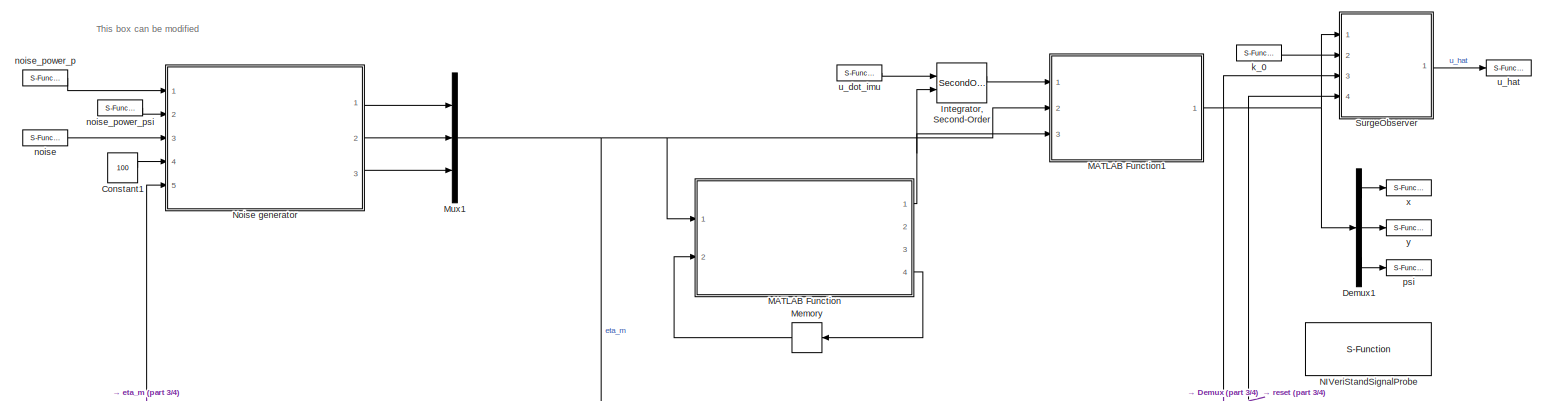
[diagram: root canvas - part 1/4, full width, top band]
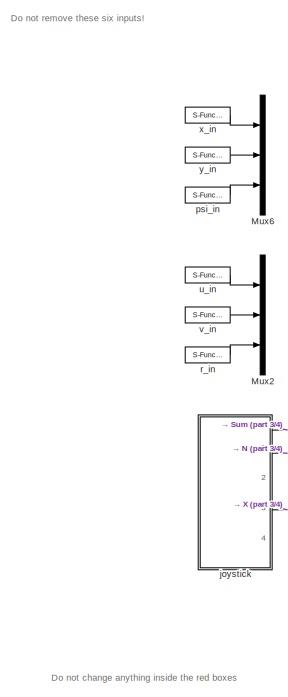
[diagram: root canvas - part 2/4, middle left region]
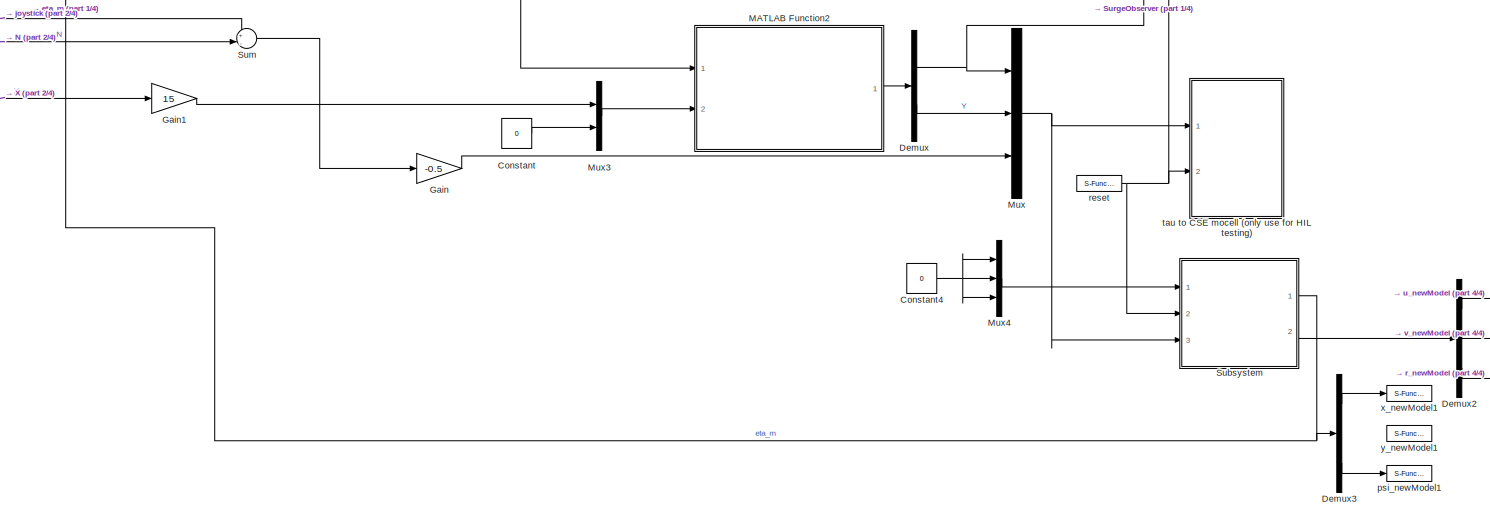
[diagram: root canvas - part 3/4, full width, bottom band]
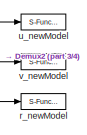
[diagram: root canvas - part 4/4, bottom right region]
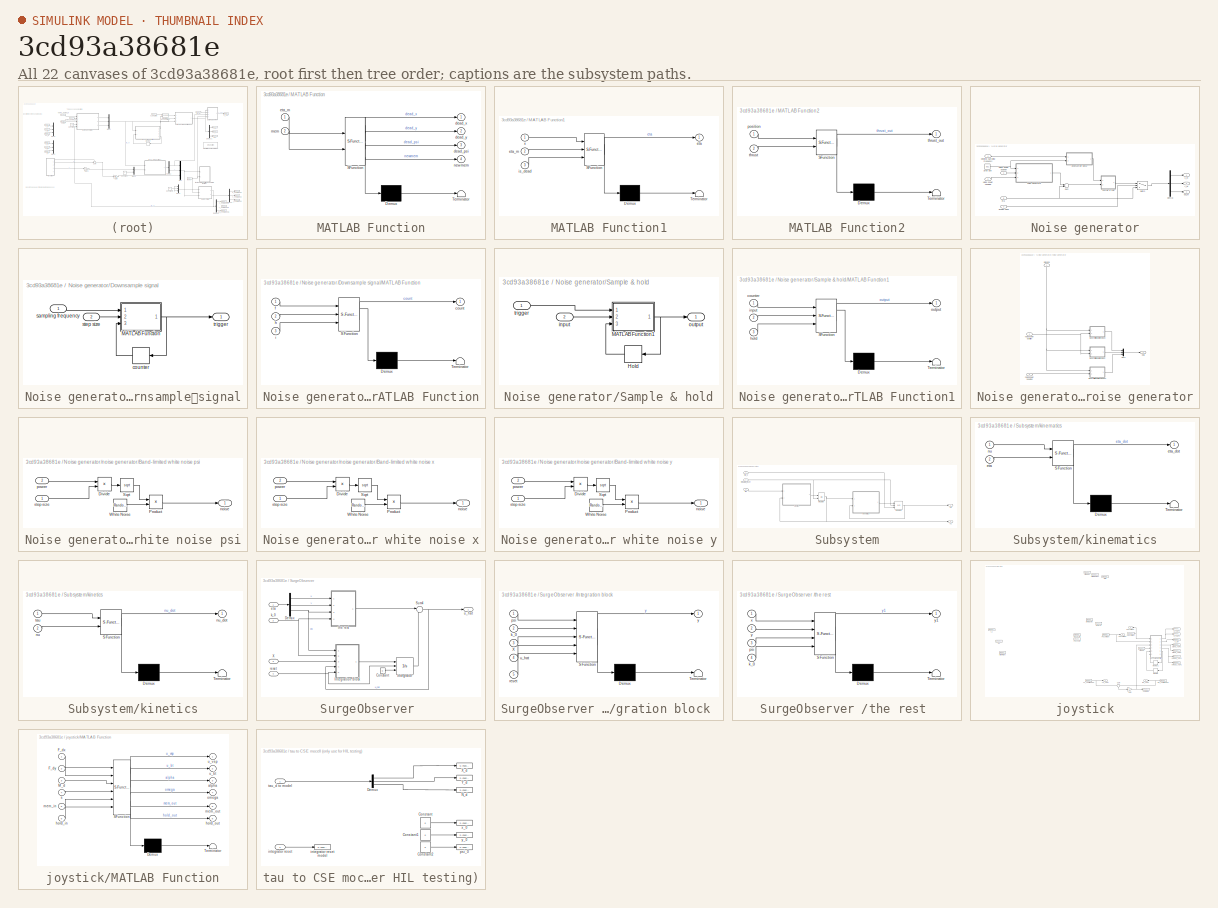
[diagram: thumbnail index - all 22 canvases of the model, root first then tree order]
MODEL slx_3cd93a38681e
KIND model
CONFIG AbsTol = auto
CONFIG FixedStep = 0.001
CONFIG MaxStep = auto
CONFIG MinStep = auto
CONFIG RelTol = 1e-3
CONFIG SampleTimeConstraint = Unconstrained
CONFIG Solver = ode2
CONFIG SolverMode = Auto
CONFIG SolverName = ode2
CONFIG StartTime = 0.0
CONFIG StopTime = inf
BLOCK [Constant] Constant
  Value = 0
BLOCK [Constant] Constant1
  Value = 100
BLOCK [Constant] Constant4
  Value = 0
BLOCK [Demux] Demux
  DisplayOption = bar
  Outputs = 2
  Ports = [1, 2]
BLOCK [Demux] Demux1
  DisplayOption = bar
  Outputs = 3
  Ports = [1, 3]
BLOCK [Demux] Demux2
  DisplayOption = bar
  Outputs = 3
  Ports = [1, 3]
BLOCK [Demux] Demux3
  DisplayOption = bar
  Outputs = 3
  Ports = [1, 3]
BLOCK [Gain] Gain
  Gain = -0.5
  OutDataTypeStr = Inherit: Inherit via internal rule
  ParamDataTypeStr = Inherit: Inherit via internal rule
  SaturateOnIntegerOverflow = off
BLOCK [Gain] Gain1
  Gain = 15
  OutDataTypeStr = Inherit: Inherit via internal rule
  ParamDataTypeStr = Inherit: Inherit via internal rule
  SaturateOnIntegerOverflow = off
BLOCK [SecondOrderIntegrator] Integrator, Second-Order
  ExternalReset = rising
  Ports = [2, 2]
BLOCK [SubSystem] MATLAB Function
  ErrorFcn = Stateflow.Translate.translate
  PermitHierarchicalResolution = ExplicitOnly
  Ports = [2, 4]
  RequestExecContextInheritance = off
  SFBlockType = MATLAB Function
  TreatAsAtomicUnit = on
BLOCK [Demux] MATLAB Function/ Demux 
  Outputs = 1
  Ports = [1, 1]
BLOCK [S-Function] MATLAB Function/ SFunction 
  EnableBusSupport = on
  FunctionName = sf_sfun
  PortCounts = [2 5]
  Ports = [2, 5]
  Tag = Stateflow S-Function ctrl_student_HIL 6
BLOCK [Terminator] MATLAB Function/ Terminator 
BLOCK [Outport] MATLAB Function/dead_psi
  IconDisplay = Port number
  Port = 3
BLOCK [Outport] MATLAB Function/dead_x
  IconDisplay = Port number
BLOCK [Outport] MATLAB Function/dead_y
  IconDisplay = Port number
  Port = 2
BLOCK [Inport] MATLAB Function/eta_m
  IconDisplay = Port number
BLOCK [Inport] MATLAB Function/mem
  IconDisplay = Port number
  Port = 2
BLOCK [Outport] MATLAB Function/newmem
  IconDisplay = Port number
  Port = 4
BLOCK [SubSystem] MATLAB Function1
  ErrorFcn = Stateflow.Translate.translate
  PermitHierarchicalResolution = ExplicitOnly
  Ports = [3, 1]
  RequestExecContextInheritance = off
  SFBlockType = MATLAB Function
  TreatAsAtomicUnit = on
BLOCK [Demux] MATLAB Function1/ Demux 
  Outputs = 1
  Ports = [1, 1]
BLOCK [S-Function] MATLAB Function1/ SFunction 
  EnableBusSupport = on
  FunctionName = sf_sfun
  PortCounts = [3 2]
  Ports = [3, 2]
  Tag = Stateflow S-Function ctrl_student_HIL 7
BLOCK [Terminator] MATLAB Function1/ Terminator 
BLOCK [Outport] MATLAB Function1/eta
  IconDisplay = Port number
BLOCK [Inport] MATLAB Function1/eta_m
  IconDisplay = Port number
  Port = 2
BLOCK [Inport] MATLAB Function1/is_dead
  IconDisplay = Port number
  Port = 3
BLOCK [Inport] MATLAB Function1/x
  IconDisplay = Port number
BLOCK [SubSystem] MATLAB Function2
  ErrorFcn = Stateflow.Translate.translate
  PermitHierarchicalResolution = ExplicitOnly
  Ports = [2, 1]
  RequestExecContextInheritance = off
  SFBlockType = MATLAB Function
  TreatAsAtomicUnit = on
BLOCK [Demux] MATLAB Function2/ Demux 
  Outputs = 1
  Ports = [1, 1]
BLOCK [S-Function] MATLAB Function2/ SFunction 
  EnableBusSupport = on
  FunctionName = sf_sfun
  PortCounts = [2 2]
  Ports = [2, 2]
  Tag = Stateflow S-Function ctrl_student_HIL 8
BLOCK [Terminator] MATLAB Function2/ Terminator 
BLOCK [Inport] MATLAB Function2/position
  IconDisplay = Port number
BLOCK [Inport] MATLAB Function2/thrust
  IconDisplay = Port number
  Port = 2
BLOCK [Outport] MATLAB Function2/thrust_out
  IconDisplay = Port number
BLOCK [Memory] Memory
  InheritSampleTime = on
  LinearizeAsDelay = on
  X0 = [1 0 1; 1 0 1; 1 0 1]
BLOCK [Mux] Mux
  DisplayOption = bar
  Inputs = 3
  Ports = [3, 1]
BLOCK [Mux] Mux1
  DisplayOption = bar
  Inputs = 3
  Ports = [3, 1]
BLOCK [Mux] Mux2
  DisplayOption = bar
  Inputs = 3
  Ports = [3, 1]
BLOCK [Mux] Mux3
  DisplayOption = bar
  Inputs = 2
  Ports = [2, 1]
BLOCK [Mux] Mux4
  DisplayOption = bar
  Inputs = 3
  Ports = [3, 1]
BLOCK [Mux] Mux6
  DisplayOption = bar
  Inputs = 3
  Ports = [3, 1]
BLOCK [S-Function] NIVeriStandSignalProbe
  FunctionName = NIVeriStandSignalProbe
  Parameters = 1
  Ports = []
BLOCK [SubSystem] Noise generator
  Ports = [5, 3]
  RequestExecContextInheritance = off
BLOCK [Demux] Noise generator/Demux
  DisplayOption = bar
  Outputs = 3
  Ports = [1, 3]
BLOCK [Inport] Noise generator/Desiired Sampling Frequency
  IconDisplay = Port number
  Port = 4
BLOCK [SubSystem] Noise generator/Downsample	signal
  Ports = [2, 1]
  RequestExecContextInheritance = off
BLOCK [SubSystem] Noise generator/Downsample	signal/MATLAB Function
  ErrorFcn = Stateflow.Translate.translate
  PermitHierarchicalResolution = ExplicitOnly
  Ports = [3, 1]
  RequestExecContextInheritance = off
  SFBlockType = MATLAB Function
  TreatAsAtomicUnit = on
BLOCK [Demux] Noise generator/Downsample	signal/MATLAB Function/ Demux 
  Outputs = 1
  Ports = [1, 1]
BLOCK [S-Function] Noise generator/Downsample	signal/MATLAB Function/ SFunction 
  EnableBusSupport = on
  FunctionName = sf_sfun
  PortCounts = [3 2]
  Ports = [3, 2]
  Tag = Stateflow S-Function ctrl_student_HIL 3
BLOCK [Terminator] Noise generator/Downsample	signal/MATLAB Function/ Terminator 
BLOCK [Outport] Noise generator/Downsample	signal/MATLAB Function/count
  IconDisplay = Port number
BLOCK [Inport] Noise generator/Downsample	signal/MATLAB Function/f
  IconDisplay = Port number
BLOCK [Inport] Noise generator/Downsample	signal/MATLAB Function/h
  IconDisplay = Port number
  Port = 2
BLOCK [Inport] Noise generator/Downsample	signal/MATLAB Function/i
  IconDisplay = Port number
  Port = 3
BLOCK [Memory] Noise generator/Downsample	signal/counter
BLOCK [Inport] Noise generator/Downsample	signal/sampling frequency
  IconDisplay = Port number
BLOCK [Inport] Noise generator/Downsample	signal/step size
  IconDisplay = Port number
  Port = 2
BLOCK [Outport] Noise generator/Downsample	signal/trigger
  IconDisplay = Port number
BLOCK [Inport] Noise generator/Enable noise
  IconDisplay = Port number
  Port = 3
BLOCK [Inport] Noise generator/Noise power heading
  IconDisplay = Port number
  Port = 2
BLOCK [Inport] Noise generator/Noise power position
  IconDisplay = Port number
BLOCK [SubSystem] Noise generator/Sample & hold
  Ports = [2, 1]
  RequestExecContextInheritance = off
BLOCK [Memory] Noise generator/Sample & hold/Hold
BLOCK [SubSystem] Noise generator/Sample & hold/MATLAB Function1
  ErrorFcn = Stateflow.Translate.translate
  PermitHierarchicalResolution = ExplicitOnly
  Ports = [3, 1]
  RequestExecContextInheritance = off
  SFBlockType = MATLAB Function
  TreatAsAtomicUnit = on
BLOCK [Demux] Noise generator/Sample & hold/MATLAB Function1/ Demux 
  Outputs = 1
  Ports = [1, 1]
BLOCK [S-Function] Noise generator/Sample & hold/MATLAB Function1/ SFunction 
  EnableBusSupport = on
  FunctionName = sf_sfun
  PortCounts = [3 2]
  Ports = [3, 2]
  Tag = Stateflow S-Function ctrl_student_HIL 5
BLOCK [Terminator] Noise generator/Sample & hold/MATLAB Function1/ Terminator 
BLOCK [Inport] Noise generator/Sample & hold/MATLAB Function1/counter
  IconDisplay = Port number
BLOCK [Inport] Noise generator/Sample & hold/MATLAB Function1/hold
  IconDisplay = Port number
  Port = 3
BLOCK [Inport] Noise generator/Sample & hold/MATLAB Function1/input
  IconDisplay = Port number
  Port = 2
BLOCK [Outport] Noise generator/Sample & hold/MATLAB Function1/output
  IconDisplay = Port number
BLOCK [Inport] Noise generator/Sample & hold/input
  IconDisplay = Port number
  Port = 2
BLOCK [Outport] Noise generator/Sample & hold/output
  IconDisplay = Port number
BLOCK [Inport] Noise generator/Sample & hold/trigger
  IconDisplay = Port number
BLOCK [Constant] Noise generator/Step size
  Value = 0.01
BLOCK [Sum] Noise generator/Sum
  InputSameDT = off
  OutDataTypeStr = Inherit: Inherit via internal rule
  Ports = [2, 1]
  SaturateOnIntegerOverflow = off
BLOCK [Switch] Noise generator/Switch
  Criteria = u2 ~= 0
  InputSameDT = off
  SaturateOnIntegerOverflow = off
BLOCK [Inport] Noise generator/eta
  IconDisplay = Port number
  Port = 5
BLOCK [SubSystem] Noise generator/noise generator
  Ports = [3, 1]
  RequestExecContextInheritance = off
BLOCK [SubSystem] Noise generator/noise generator/Band-limited white noise psi
  Ports = [2, 1]
  RequestExecContextInheritance = off
BLOCK [Product] Noise generator/noise generator/Band-limited white noise psi/Divide
  InputSameDT = off
  Inputs = */
  OutDataTypeStr = Inherit: Inherit via internal rule
  Ports = [2, 1]
  RndMeth = Floor
  SaturateOnIntegerOverflow = off
BLOCK [Product] Noise generator/noise generator/Band-limited white noise psi/Product
  InputSameDT = off
  OutDataTypeStr = Inherit: Inherit via internal rule
  Ports = [2, 1]
  RndMeth = Floor
  SaturateOnIntegerOverflow = off
BLOCK [Sqrt] Noise generator/noise generator/Band-limited white noise psi/Sqrt
BLOCK [RandomNumber] Noise generator/noise generator/Band-limited white noise psi/White Noise
  DisableCoverage = on
  Seed = 9025
BLOCK [Outport] Noise generator/noise generator/Band-limited white noise psi/noise
  IconDisplay = Port number
BLOCK [Inport] Noise generator/noise generator/Band-limited white noise psi/power
  IconDisplay = Port number
  Port = 2
BLOCK [Inport] Noise generator/noise generator/Band-limited white noise psi/step size
  IconDisplay = Port number
BLOCK [SubSystem] Noise generator/noise generator/Band-limited white noise x
  Ports = [2, 1]
  RequestExecContextInheritance = off
BLOCK [Product] Noise generator/noise generator/Band-limited white noise x/Divide
  InputSameDT = off
  Inputs = */
  OutDataTypeStr = Inherit: Inherit via internal rule
  Ports = [2, 1]
  RndMeth = Floor
  SaturateOnIntegerOverflow = off
BLOCK [Product] Noise generator/noise generator/Band-limited white noise x/Product
  InputSameDT = off
  OutDataTypeStr = Inherit: Inherit via internal rule
  Ports = [2, 1]
  RndMeth = Floor
  SaturateOnIntegerOverflow = off
BLOCK [Sqrt] Noise generator/noise generator/Band-limited white noise x/Sqrt
BLOCK [RandomNumber] Noise generator/noise generator/Band-limited white noise x/White Noise
  DisableCoverage = on
  Seed = 9024
BLOCK [Outport] Noise generator/noise generator/Band-limited white noise x/noise
  IconDisplay = Port number
BLOCK [Inport] Noise generator/noise generator/Band-limited white noise x/power
  IconDisplay = Port number
  Port = 2
BLOCK [Inport] Noise generator/noise generator/Band-limited white noise x/step size
  IconDisplay = Port number
BLOCK [SubSystem] Noise generator/noise generator/Band-limited white noise y
  Ports = [2, 1]
  RequestExecContextInheritance = off
BLOCK [Product] Noise generator/noise generator/Band-limited white noise y/Divide
  InputSameDT = off
  Inputs = */
  OutDataTypeStr = Inherit: Inherit via internal rule
  Ports = [2, 1]
  RndMeth = Floor
  SaturateOnIntegerOverflow = off
BLOCK [Product] Noise generator/noise generator/Band-limited white noise y/Product
  InputSameDT = off
  OutDataTypeStr = Inherit: Inherit via internal rule
  Ports = [2, 1]
  RndMeth = Floor
  SaturateOnIntegerOverflow = off
BLOCK [Sqrt] Noise generator/noise generator/Band-limited white noise y/Sqrt
BLOCK [RandomNumber] Noise generator/noise generator/Band-limited white noise y/White Noise
  DisableCoverage = on
  Seed = 123
BLOCK [Outport] Noise generator/noise generator/Band-limited white noise y/noise
  IconDisplay = Port number
BLOCK [Inport] Noise generator/noise generator/Band-limited white noise y/power
  IconDisplay = Port number
  Port = 2
BLOCK [Inport] Noise generator/noise generator/Band-limited white noise y/step size
  IconDisplay = Port number
BLOCK [Mux] Noise generator/noise generator/Mux1
  DisplayOption = bar
  Inputs = 3
  Ports = [3, 1]
BLOCK [Outport] Noise generator/noise generator/Out1
  IconDisplay = Port number
BLOCK [Inport] Noise generator/noise generator/noise power heading
  IconDisplay = Port number
  Port = 3
BLOCK [Inport] Noise generator/noise generator/noise power position
  IconDisplay = Port number
  Port = 2
BLOCK [Inport] Noise generator/noise generator/step size
  IconDisplay = Port number
BLOCK [Outport] Noise generator/psi_m
  IconDisplay = Port number
  Port = 3
BLOCK [Outport] Noise generator/x_m
  IconDisplay = Port number
BLOCK [Outport] Noise generator/y_m
  IconDisplay = Port number
  Port = 2
BLOCK [SubSystem] Subsystem
  Ports = [3, 2]
  RequestExecContextInheritance = off
BLOCK [Integrator] Subsystem/Integrator
  ExternalReset = rising
  InitialCondition = [0 0 0]'
  Ports = [2, 1]
BLOCK [Integrator] Subsystem/Integrator1
  ExternalReset = rising
  InitialCondition = [0 0 0]'
  InitialConditionSource = external
  Ports = [3, 1]
BLOCK [Outport] Subsystem/eta
  IconDisplay = Port number
BLOCK [Inport] Subsystem/eta_0
  IconDisplay = Port number
BLOCK [Inport] Subsystem/integrator_reset
  IconDisplay = Port number
  Port = 2
BLOCK [SubSystem] Subsystem/kinematics
  ErrorFcn = Stateflow.Translate.translate
  PermitHierarchicalResolution = ExplicitOnly
  Ports = [2, 1]
  RequestExecContextInheritance = off
  SFBlockType = MATLAB Function
  TreatAsAtomicUnit = on
BLOCK [Demux] Subsystem/kinematics/ Demux 
  Outputs = 1
  Ports = [1, 1]
BLOCK [S-Function] Subsystem/kinematics/ SFunction 
  EnableBusSupport = on
  FunctionName = sf_sfun
  PortCounts = [2 2]
  Ports = [2, 2]
  Tag = Stateflow S-Function ctrl_student_HIL 1
BLOCK [Terminator] Subsystem/kinematics/ Terminator 
BLOCK [Inport] Subsystem/kinematics/eta
  IconDisplay = Port number
  Port = 2
BLOCK [Outport] Subsystem/kinematics/eta_dot
  IconDisplay = Port number
BLOCK [Inport] Subsystem/kinematics/nu
  IconDisplay = Port number
BLOCK [SubSystem] Subsystem/kinetics
  ErrorFcn = Stateflow.Translate.translate
  PermitHierarchicalResolution = ExplicitOnly
  Ports = [2, 1]
  RequestExecContextInheritance = off
  SFBlockType = MATLAB Function
  TreatAsAtomicUnit = on
BLOCK [Demux] Subsystem/kinetics/ Demux 
  Outputs = 1
  Ports = [1, 1]
BLOCK [S-Function] Subsystem/kinetics/ SFunction 
  EnableBusSupport = on
  FunctionName = sf_sfun
  PortCounts = [2 2]
  Ports = [2, 2]
  Tag = Stateflow S-Function ctrl_student_HIL 4
BLOCK [Terminator] Subsystem/kinetics/ Terminator 
BLOCK [Inport] Subsystem/kinetics/nu
  IconDisplay = Port number
  Port = 2
BLOCK [Outport] Subsystem/kinetics/nu_dot
  IconDisplay = Port number
BLOCK [Inport] Subsystem/kinetics/tau
  IconDisplay = Port number
BLOCK [Outport] Subsystem/nu
  IconDisplay = Port number
  Port = 2
BLOCK [Inport] Subsystem/tau
  IconDisplay = Port number
  Port = 3
BLOCK [Sum] Sum
  IconShape = round
  InputSameDT = off
  Inputs = +|-
  OutDataTypeStr = Inherit: Inherit via internal rule
  Ports = [2, 1]
  SaturateOnIntegerOverflow = off
BLOCK [SubSystem] SurgeObserver 
  Ports = [4, 1]
  RequestExecContextInheritance = off
BLOCK [Constant] SurgeObserver /Constant
  Value = 0
BLOCK [Demux] SurgeObserver /Demux
  DisplayOption = bar
  Outputs = 3
  Ports = [1, 3]
BLOCK [SubSystem] SurgeObserver /Integration block 
  ErrorFcn = Stateflow.Translate.translate
  PermitHierarchicalResolution = ExplicitOnly
  Ports = [5, 1]
  RequestExecContextInheritance = off
  SFBlockType = MATLAB Function
  TreatAsAtomicUnit = on
BLOCK [Demux] SurgeObserver /Integration block / Demux 
  Outputs = 1
  Ports = [1, 1]
BLOCK [S-Function] SurgeObserver /Integration block / SFunction 
  EnableBusSupport = on
  FunctionName = sf_sfun
  PortCounts = [5 2]
  Ports = [5, 2]
  Tag = Stateflow S-Function ctrl_student_HIL 9
BLOCK [Terminator] SurgeObserver /Integration block / Terminator 
BLOCK [Inport] SurgeObserver /Integration block /X
  IconDisplay = Port number
  Port = 3
BLOCK [Inport] SurgeObserver /Integration block /k_0
  IconDisplay = Port number
  Port = 2
BLOCK [Inport] SurgeObserver /Integration block /psi
  IconDisplay = Port number
BLOCK [Inport] SurgeObserver /Integration block /reset
  IconDisplay = Port number
  Port = 5
BLOCK [Inport] SurgeObserver /Integration block /u_hat
  IconDisplay = Port number
  Port = 4
BLOCK [Outport] SurgeObserver /Integration block /y
  IconDisplay = Port number
BLOCK [Integrator] SurgeObserver /Integrator
  ExternalReset = either
  InitialConditionSource = external
  Ports = [3, 1]
BLOCK [Sum] SurgeObserver /Sum4
  IconShape = round
  InputSameDT = off
  Inputs = |++
  OutDataTypeStr = Inherit: Inherit via internal rule
  Ports = [2, 1]
  SaturateOnIntegerOverflow = off
BLOCK [Inport] SurgeObserver /X
  IconDisplay = Port number
  Port = 3
BLOCK [Inport] SurgeObserver /eta
  IconDisplay = Port number
BLOCK [Inport] SurgeObserver /k_0
  IconDisplay = Port number
  Port = 2
BLOCK [Inport] SurgeObserver /reset
  IconDisplay = Port number
  Port = 4
BLOCK [SubSystem] SurgeObserver /the rest 
  ErrorFcn = Stateflow.Translate.translate
  PermitHierarchicalResolution = ExplicitOnly
  Ports = [4, 1]
  RequestExecContextInheritance = off
  SFBlockType = MATLAB Function
  TreatAsAtomicUnit = on
BLOCK [Demux] SurgeObserver /the rest / Demux 
  Outputs = 1
  Ports = [1, 1]
BLOCK [S-Function] SurgeObserver /the rest / SFunction 
  EnableBusSupport = on
  FunctionName = sf_sfun
  PortCounts = [4 2]
  Ports = [4, 2]
  Tag = Stateflow S-Function ctrl_student_HIL 10
BLOCK [Terminator] SurgeObserver /the rest / Terminator 
BLOCK [Inport] SurgeObserver /the rest /k_0
  IconDisplay = Port number
  Port = 4
BLOCK [Inport] SurgeObserver /the rest /psi
  IconDisplay = Port number
  Port = 3
BLOCK [Inport] SurgeObserver /the rest /x
  IconDisplay = Port number
BLOCK [Inport] SurgeObserver /the rest /y
  IconDisplay = Port number
  Port = 2
BLOCK [Outport] SurgeObserver /the rest /y1
  IconDisplay = Port number
BLOCK [Outport] SurgeObserver /u_hat
  IconDisplay = Port number
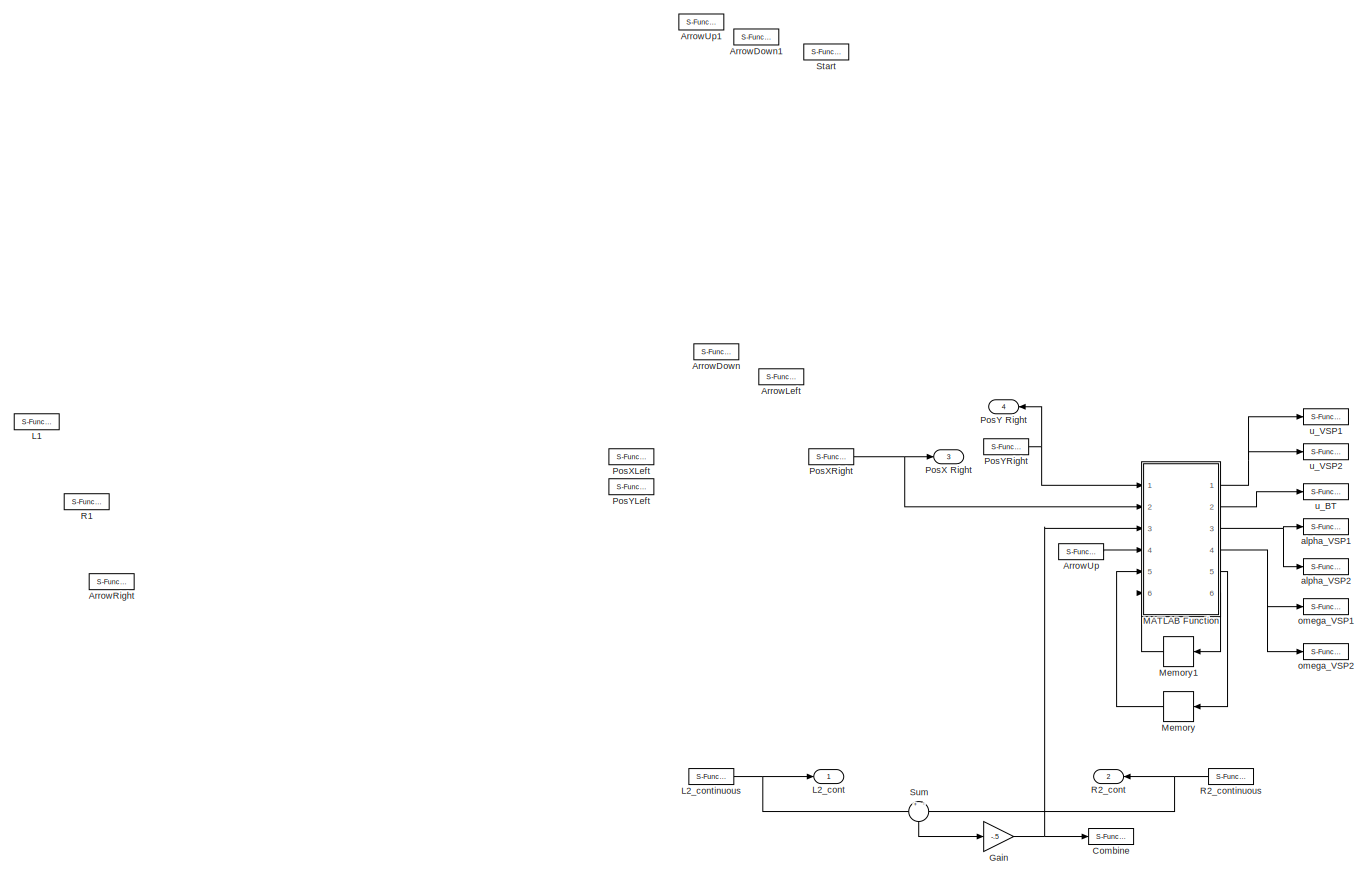
[diagram: joystick - part 1/1, most of the canvas]
BLOCK [SubSystem] joystick
  Ports = [0, 4]
  RequestExecContextInheritance = off
BLOCK [S-Function] joystick/ArrowDown
  Commented = on
  CopyFcn = NIVeriStand_MDL_functions('', 'IO_copy');
  DeleteFcn = NIVeriStand_MDL_functions('', 'IO_delete');
  FunctionName = NIVeriStandIO
  MoveFcn = set_param(gcb, 'Mask', 'on');
  Parameters = width dtype portnum stime stype btype
  Ports = [0, 1]
  Priority = 9
BLOCK [S-Function] joystick/ArrowDown1
  Commented = on
  CopyFcn = NIVeriStand_MDL_functions('', 'IO_copy');
  DeleteFcn = NIVeriStand_MDL_functions('', 'IO_delete');
  FunctionName = NIVeriStandIO
  MoveFcn = set_param(gcb, 'Mask', 'on');
  Parameters = width dtype portnum stime stype btype
  Ports = [0, 1]
  Priority = 13
BLOCK [S-Function] joystick/ArrowLeft
  Commented = on
  CopyFcn = NIVeriStand_MDL_functions('', 'IO_copy');
  DeleteFcn = NIVeriStand_MDL_functions('', 'IO_delete');
  FunctionName = NIVeriStandIO
  MoveFcn = set_param(gcb, 'Mask', 'on');
  Parameters = width dtype portnum stime stype btype
  Ports = [0, 1]
  Priority = 11
BLOCK [S-Function] joystick/ArrowRight
  Commented = on
  CopyFcn = NIVeriStand_MDL_functions('', 'IO_copy');
  DeleteFcn = NIVeriStand_MDL_functions('', 'IO_delete');
  FunctionName = NIVeriStandIO
  MoveFcn = set_param(gcb, 'Mask', 'on');
  Parameters = width dtype portnum stime stype btype
  Ports = [0, 1]
  Priority = 12
BLOCK [S-Function] joystick/ArrowUp
  CopyFcn = NIVeriStand_MDL_functions('', 'IO_copy');
  DeleteFcn = NIVeriStand_MDL_functions('', 'IO_delete');
  FunctionName = NIVeriStandIO
  MoveFcn = set_param(gcb, 'Mask', 'on');
  Parameters = width dtype portnum stime stype btype
  Ports = [0, 1]
  Priority = 10
BLOCK [S-Function] joystick/ArrowUp1
  Commented = on
  CopyFcn = NIVeriStand_MDL_functions('', 'IO_copy');
  DeleteFcn = NIVeriStand_MDL_functions('', 'IO_delete');
  FunctionName = NIVeriStandIO
  MoveFcn = set_param(gcb, 'Mask', 'on');
  Parameters = width dtype portnum stime stype btype
  Ports = [0, 1]
  Priority = 14
BLOCK [S-Function] joystick/Combine
  CopyFcn = NIVeriStand_MDL_functions('', 'IO_copy');
  DeleteFcn = NIVeriStand_MDL_functions('', 'IO_delete');
  FunctionName = NIVeriStandIO
  MoveFcn = set_param(gcb, 'Mask', 'on');
  Parameters = width dtype portnum stime stype btype
  Ports = [1]
  Priority = 8
BLOCK [Gain] joystick/Gain
  Gain = -.5
  OutDataTypeStr = Inherit: Inherit via internal rule
  ParamDataTypeStr = Inherit: Inherit via internal rule
  SaturateOnIntegerOverflow = off
BLOCK [S-Function] joystick/L1
  Commented = on
  CopyFcn = NIVeriStand_MDL_functions('', 'IO_copy');
  DeleteFcn = NIVeriStand_MDL_functions('', 'IO_delete');
  FunctionName = NIVeriStandIO
  MoveFcn = set_param(gcb, 'Mask', 'on');
  Parameters = width dtype portnum stime stype btype
  Ports = [0, 1]
  Priority = 7
BLOCK [Outport] joystick/L2_cont
  IconDisplay = Port number
BLOCK [S-Function] joystick/L2_continuous
  CopyFcn = NIVeriStand_MDL_functions('', 'IO_copy');
  DeleteFcn = NIVeriStand_MDL_functions('', 'IO_delete');
  FunctionName = NIVeriStandIO
  MoveFcn = set_param(gcb, 'Mask', 'on');
  Parameters = width dtype portnum stime stype btype
  Ports = [0, 1]
  Priority = 1
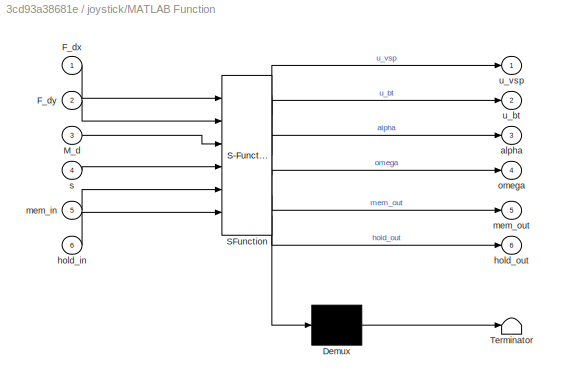
BLOCK [SubSystem] joystick/MATLAB Function
  ErrorFcn = Stateflow.Translate.translate
  PermitHierarchicalResolution = ExplicitOnly
  Ports = [6, 6]
  RequestExecContextInheritance = off
  SFBlockType = MATLAB Function
  TreatAsAtomicUnit = on
BLOCK [Demux] joystick/MATLAB Function/ Demux 
  Outputs = 1
  Ports = [1, 1]
BLOCK [S-Function] joystick/MATLAB Function/ SFunction 
  EnableBusSupport = on
  FunctionName = sf_sfun
  PortCounts = [6 7]
  Ports = [6, 7]
  Tag = Stateflow S-Function ctrl_student_HIL 2
BLOCK [Terminator] joystick/MATLAB Function/ Terminator 
BLOCK [Inport] joystick/MATLAB Function/F_dx
  IconDisplay = Port number
BLOCK [Inport] joystick/MATLAB Function/F_dy
  IconDisplay = Port number
  Port = 2
BLOCK [Inport] joystick/MATLAB Function/M_d
  IconDisplay = Port number
  Port = 3
BLOCK [Outport] joystick/MATLAB Function/alpha
  IconDisplay = Port number
  Port = 3
BLOCK [Inport] joystick/MATLAB Function/hold_in
  IconDisplay = Port number
  Port = 6
BLOCK [Outport] joystick/MATLAB Function/hold_out
  IconDisplay = Port number
  Port = 6
BLOCK [Inport] joystick/MATLAB Function/mem_in
  IconDisplay = Port number
  Port = 5
BLOCK [Outport] joystick/MATLAB Function/mem_out
  IconDisplay = Port number
  Port = 5
BLOCK [Outport] joystick/MATLAB Function/omega
  IconDisplay = Port number
  Port = 4
BLOCK [Inport] joystick/MATLAB Function/s
  IconDisplay = Port number
  Port = 4
BLOCK [Outport] joystick/MATLAB Function/u_bt
  IconDisplay = Port number
  Port = 2
BLOCK [Outport] joystick/MATLAB Function/u_vsp
  IconDisplay = Port number
BLOCK [Memory] joystick/Memory
  X0 = 1
BLOCK [Memory] joystick/Memory1
BLOCK [Outport] joystick/PosX Right
  IconDisplay = Port number
  Port = 3
BLOCK [S-Function] joystick/PosXLeft
  Commented = on
  CopyFcn = NIVeriStand_MDL_functions('', 'IO_copy');
  DeleteFcn = NIVeriStand_MDL_functions('', 'IO_delete');
  FunctionName = NIVeriStandIO
  MoveFcn = set_param(gcb, 'Mask', 'on');
  Parameters = width dtype portnum stime stype btype
  Ports = [0, 1]
  Priority = 5
BLOCK [S-Function] joystick/PosXRight
  CopyFcn = NIVeriStand_MDL_functions('', 'IO_copy');
  DeleteFcn = NIVeriStand_MDL_functions('', 'IO_delete');
  FunctionName = NIVeriStandIO
  MoveFcn = set_param(gcb, 'Mask', 'on');
  Parameters = width dtype portnum stime stype btype
  Ports = [0, 1]
  Priority = 2
BLOCK [Outport] joystick/PosY Right
  IconDisplay = Port number
  Port = 4
BLOCK [S-Function] joystick/PosYLeft
  Commented = on
  CopyFcn = NIVeriStand_MDL_functions('', 'IO_copy');
  DeleteFcn = NIVeriStand_MDL_functions('', 'IO_delete');
  FunctionName = NIVeriStandIO
  MoveFcn = set_param(gcb, 'Mask', 'on');
  Parameters = width dtype portnum stime stype btype
  Ports = [0, 1]
  Priority = 6
BLOCK [S-Function] joystick/PosYRight
  CopyFcn = NIVeriStand_MDL_functions('', 'IO_copy');
  DeleteFcn = NIVeriStand_MDL_functions('', 'IO_delete');
  FunctionName = NIVeriStandIO
  MoveFcn = set_param(gcb, 'Mask', 'on');
  Parameters = width dtype portnum stime stype btype
  Ports = [0, 1]
  Priority = 3
BLOCK [S-Function] joystick/R1
  Commented = on
  CopyFcn = NIVeriStand_MDL_functions('', 'IO_copy');
  DeleteFcn = NIVeriStand_MDL_functions('', 'IO_delete');
  FunctionName = NIVeriStandIO
  MoveFcn = set_param(gcb, 'Mask', 'on');
  Parameters = width dtype portnum stime stype btype
  Ports = [0, 1]
  Priority = 8
BLOCK [Outport] joystick/R2_cont
  IconDisplay = Port number
  Port = 2
BLOCK [S-Function] joystick/R2_continuous
  CopyFcn = NIVeriStand_MDL_functions('', 'IO_copy');
  DeleteFcn = NIVeriStand_MDL_functions('', 'IO_delete');
  FunctionName = NIVeriStandIO
  MoveFcn = set_param(gcb, 'Mask', 'on');
  Parameters = width dtype portnum stime stype btype
  Ports = [0, 1]
  Priority = 4
BLOCK [S-Function] joystick/Start
  Commented = on
  CopyFcn = NIVeriStand_MDL_functions('', 'IO_copy');
  DeleteFcn = NIVeriStand_MDL_functions('', 'IO_delete');
  FunctionName = NIVeriStandIO
  MoveFcn = set_param(gcb, 'Mask', 'on');
  Parameters = width dtype portnum stime stype btype
  Ports = [0, 1]
  Priority = 16
BLOCK [Sum] joystick/Sum
  IconShape = round
  InputSameDT = off
  Inputs = +|-
  OutDataTypeStr = Inherit: Inherit via internal rule
  Ports = [2, 1]
  SaturateOnIntegerOverflow = off
BLOCK [S-Function] joystick/alpha_VSP1
  CopyFcn = NIVeriStand_MDL_functions('', 'IO_copy');
  DeleteFcn = NIVeriStand_MDL_functions('', 'IO_delete');
  FunctionName = NIVeriStandIO
  MoveFcn = set_param(gcb, 'Mask', 'on');
  Parameters = width dtype portnum stime stype btype
  Ports = [1]
  Priority = 3
BLOCK [S-Function] joystick/alpha_VSP2
  CopyFcn = NIVeriStand_MDL_functions('', 'IO_copy');
  DeleteFcn = NIVeriStand_MDL_functions('', 'IO_delete');
  FunctionName = NIVeriStandIO
  MoveFcn = set_param(gcb, 'Mask', 'on');
  Parameters = width dtype portnum stime stype btype
  Ports = [1]
  Priority = 2
BLOCK [S-Function] joystick/omega_VSP1
  CopyFcn = NIVeriStand_MDL_functions('', 'IO_copy');
  DeleteFcn = NIVeriStand_MDL_functions('', 'IO_delete');
  FunctionName = NIVeriStandIO
  MoveFcn = set_param(gcb, 'Mask', 'on');
  Parameters = width dtype portnum stime stype btype
  Ports = [1]
  Priority = 5
BLOCK [S-Function] joystick/omega_VSP2
  CopyFcn = NIVeriStand_MDL_functions('', 'IO_copy');
  DeleteFcn = NIVeriStand_MDL_functions('', 'IO_delete');
  FunctionName = NIVeriStandIO
  MoveFcn = set_param(gcb, 'Mask', 'on');
  Parameters = width dtype portnum stime stype btype
  Ports = [1]
  Priority = 6
BLOCK [S-Function] joystick/u_BT
  CopyFcn = NIVeriStand_MDL_functions('', 'IO_copy');
  DeleteFcn = NIVeriStand_MDL_functions('', 'IO_delete');
  FunctionName = NIVeriStandIO
  MoveFcn = set_param(gcb, 'Mask', 'on');
  Parameters = width dtype portnum stime stype btype
  Ports = [1]
  Priority = 7
BLOCK [S-Function] joystick/u_VSP1
  CopyFcn = NIVeriStand_MDL_functions('', 'IO_copy');
  DeleteFcn = NIVeriStand_MDL_functions('', 'IO_delete');
  FunctionName = NIVeriStandIO
  MoveFcn = set_param(gcb, 'Mask', 'on');
  Parameters = width dtype portnum stime stype btype
  Ports = [1]
  Priority = 1
BLOCK [S-Function] joystick/u_VSP2
  CopyFcn = NIVeriStand_MDL_functions('', 'IO_copy');
  DeleteFcn = NIVeriStand_MDL_functions('', 'IO_delete');
  FunctionName = NIVeriStandIO
  MoveFcn = set_param(gcb, 'Mask', 'on');
  Parameters = width dtype portnum stime stype btype
  Ports = [1]
  Priority = 4
BLOCK [S-Function] k_0
  CopyFcn = NIVeriStand_MDL_functions('', 'IO_copy');
  DeleteFcn = NIVeriStand_MDL_functions('', 'IO_delete');
  FunctionName = NIVeriStandIO
  MoveFcn = set_param(gcb, 'Mask', 'on');
  Parameters = width dtype portnum stime stype btype
  Ports = [0, 1]
  Priority = 11
BLOCK [S-Function] noise
  CopyFcn = NIVeriStand_MDL_functions('', 'IO_copy');
  DeleteFcn = NIVeriStand_MDL_functions('', 'IO_delete');
  FunctionName = NIVeriStandIO
  MoveFcn = set_param(gcb, 'Mask', 'on');
  Parameters = width dtype portnum stime stype btype
  Ports = [0, 1]
  Priority = 10
BLOCK [S-Function] noise_power_p
  CopyFcn = NIVeriStand_MDL_functions('', 'IO_copy');
  DeleteFcn = NIVeriStand_MDL_functions('', 'IO_delete');
  FunctionName = NIVeriStandIO
  MoveFcn = set_param(gcb, 'Mask', 'on');
  Parameters = width dtype portnum stime stype btype
  Ports = [0, 1]
  Priority = 8
BLOCK [S-Function] noise_power_psi
  CopyFcn = NIVeriStand_MDL_functions('', 'IO_copy');
  DeleteFcn = NIVeriStand_MDL_functions('', 'IO_delete');
  FunctionName = NIVeriStandIO
  MoveFcn = set_param(gcb, 'Mask', 'on');
  Parameters = width dtype portnum stime stype btype
  Ports = [0, 1]
  Priority = 9
BLOCK [S-Function] psi
  CopyFcn = NIVeriStand_MDL_functions('', 'IO_copy');
  DeleteFcn = NIVeriStand_MDL_functions('', 'IO_delete');
  FunctionName = NIVeriStandIO
  MoveFcn = set_param(gcb, 'Mask', 'on');
  Parameters = width dtype portnum stime stype btype
  Ports = [1]
  Priority = 4
BLOCK [S-Function] psi_in
  CopyFcn = NIVeriStand_MDL_functions('', 'IO_copy');
  DeleteFcn = NIVeriStand_MDL_functions('', 'IO_delete');
  FunctionName = NIVeriStandIO
  MoveFcn = set_param(gcb, 'Mask', 'on');
  Parameters = width dtype portnum stime stype btype
  Ports = [0, 1]
  Priority = 2
BLOCK [S-Function] psi_newModel1
  CopyFcn = NIVeriStand_MDL_functions('', 'IO_copy');
  DeleteFcn = NIVeriStand_MDL_functions('', 'IO_delete');
  FunctionName = NIVeriStandIO
  MoveFcn = set_param(gcb, 'Mask', 'on');
  Parameters = width dtype portnum stime stype btype
  Ports = [1]
  Priority = 8
BLOCK [S-Function] r_in
  CopyFcn = NIVeriStand_MDL_functions('', 'IO_copy');
  DeleteFcn = NIVeriStand_MDL_functions('', 'IO_delete');
  FunctionName = NIVeriStandIO
  MoveFcn = set_param(gcb, 'Mask', 'on');
  Parameters = width dtype portnum stime stype btype
  Ports = [0, 1]
  Priority = 5
BLOCK [S-Function] r_newModel
  CopyFcn = NIVeriStand_MDL_functions('', 'IO_copy');
  DeleteFcn = NIVeriStand_MDL_functions('', 'IO_delete');
  FunctionName = NIVeriStandIO
  MoveFcn = set_param(gcb, 'Mask', 'on');
  Parameters = width dtype portnum stime stype btype
  Ports = [1]
  Priority = 7
BLOCK [S-Function] reset
  CopyFcn = NIVeriStand_MDL_functions('', 'IO_copy');
  DeleteFcn = NIVeriStand_MDL_functions('', 'IO_delete');
  FunctionName = NIVeriStandIO
  MoveFcn = set_param(gcb, 'Mask', 'on');
  Parameters = width dtype portnum stime stype btype
  Ports = [0, 1]
  Priority = 12
BLOCK [SubSystem] tau to CSE mocell (only use for HIL testing)
  Ports = [2]
  RequestExecContextInheritance = off
BLOCK [Constant] tau to CSE mocell (only use for HIL testing)/Constant
  Value = 0
BLOCK [Constant] tau to CSE mocell (only use for HIL testing)/Constant1
  Value = 0
BLOCK [Constant] tau to CSE mocell (only use for HIL testing)/Constant2
  Value = 0
BLOCK [Demux] tau to CSE mocell (only use for HIL testing)/Demux
  DisplayOption = bar
  Outputs = 3
  Ports = [1, 3]
BLOCK [S-Function] tau to CSE mocell (only use for HIL testing)/N_d
  CopyFcn = NIVeriStand_MDL_functions('', 'IO_copy');
  DeleteFcn = NIVeriStand_MDL_functions('', 'IO_delete');
  FunctionName = NIVeriStandIO
  MoveFcn = set_param(gcb, 'Mask', 'on');
  Parameters = width dtype portnum stime stype btype
  Ports = [1]
  Priority = 2
BLOCK [S-Function] tau to CSE mocell (only use for HIL testing)/X_d
  CopyFcn = NIVeriStand_MDL_functions('', 'IO_copy');
  DeleteFcn = NIVeriStand_MDL_functions('', 'IO_delete');
  FunctionName = NIVeriStandIO
  MoveFcn = set_param(gcb, 'Mask', 'on');
  Parameters = width dtype portnum stime stype btype
  Ports = [1]
  Priority = 1
BLOCK [S-Function] tau to CSE mocell (only use for HIL testing)/Y_d
  CopyFcn = NIVeriStand_MDL_functions('', 'IO_copy');
  DeleteFcn = NIVeriStand_MDL_functions('', 'IO_delete');
  FunctionName = NIVeriStandIO
  MoveFcn = set_param(gcb, 'Mask', 'on');
  Parameters = width dtype portnum stime stype btype
  Ports = [1]
  Priority = 3
BLOCK [Inport] tau to CSE mocell (only use for HIL testing)/integrator reset
  IconDisplay = Port number
  Port = 2
BLOCK [S-Function] tau to CSE mocell (only use for HIL testing)/integrator reset model
  CopyFcn = NIVeriStand_MDL_functions('', 'IO_copy');
  DeleteFcn = NIVeriStand_MDL_functions('', 'IO_delete');
  FunctionName = NIVeriStandIO
  MoveFcn = set_param(gcb, 'Mask', 'on');
  Parameters = width dtype portnum stime stype btype
  Ports = [1]
  Priority = 7
BLOCK [S-Function] tau to CSE mocell (only use for HIL testing)/psi_0 
  CopyFcn = NIVeriStand_MDL_functions('', 'IO_copy');
  DeleteFcn = NIVeriStand_MDL_functions('', 'IO_delete');
  FunctionName = NIVeriStandIO
  MoveFcn = set_param(gcb, 'Mask', 'on');
  Parameters = width dtype portnum stime stype btype
  Ports = [1]
  Priority = 4
BLOCK [Inport] tau to CSE mocell (only use for HIL testing)/tau_d to model
  IconDisplay = Port number
BLOCK [S-Function] tau to CSE mocell (only use for HIL testing)/x_0
  CopyFcn = NIVeriStand_MDL_functions('', 'IO_copy');
  DeleteFcn = NIVeriStand_MDL_functions('', 'IO_delete');
  FunctionName = NIVeriStandIO
  MoveFcn = set_param(gcb, 'Mask', 'on');
  Parameters = width dtype portnum stime stype btype
  Ports = [1]
  Priority = 5
BLOCK [S-Function] tau to CSE mocell (only use for HIL testing)/y_0
  CopyFcn = NIVeriStand_MDL_functions('', 'IO_copy');
  DeleteFcn = NIVeriStand_MDL_functions('', 'IO_delete');
  FunctionName = NIVeriStandIO
  MoveFcn = set_param(gcb, 'Mask', 'on');
  Parameters = width dtype portnum stime stype btype
  Ports = [1]
  Priority = 6
BLOCK [S-Function] u_dot_imu
  CopyFcn = NIVeriStand_MDL_functions('', 'IO_copy');
  DeleteFcn = NIVeriStand_MDL_functions('', 'IO_delete');
  FunctionName = NIVeriStandIO
  MoveFcn = set_param(gcb, 'Mask', 'on');
  Parameters = width dtype portnum stime stype btype
  Ports = [0, 1]
  Priority = 7
BLOCK [S-Function] u_hat
  CopyFcn = NIVeriStand_MDL_functions('', 'IO_copy');
  DeleteFcn = NIVeriStand_MDL_functions('', 'IO_delete');
  FunctionName = NIVeriStandIO
  MoveFcn = set_param(gcb, 'Mask', 'on');
  Parameters = width dtype portnum stime stype btype
  Ports = [1]
  Priority = 1
BLOCK [S-Function] u_in
  CopyFcn = NIVeriStand_MDL_functions('', 'IO_copy');
  DeleteFcn = NIVeriStand_MDL_functions('', 'IO_delete');
  FunctionName = NIVeriStandIO
  MoveFcn = set_param(gcb, 'Mask', 'on');
  Parameters = width dtype portnum stime stype btype
  Ports = [0, 1]
  Priority = 4
BLOCK [S-Function] u_newModel
  CopyFcn = NIVeriStand_MDL_functions('', 'IO_copy');
  DeleteFcn = NIVeriStand_MDL_functions('', 'IO_delete');
  FunctionName = NIVeriStandIO
  MoveFcn = set_param(gcb, 'Mask', 'on');
  Parameters = width dtype portnum stime stype btype
  Ports = [1]
  Priority = 6
BLOCK [S-Function] v_in
  CopyFcn = NIVeriStand_MDL_functions('', 'IO_copy');
  DeleteFcn = NIVeriStand_MDL_functions('', 'IO_delete');
  FunctionName = NIVeriStandIO
  MoveFcn = set_param(gcb, 'Mask', 'on');
  Parameters = width dtype portnum stime stype btype
  Ports = [0, 1]
  Priority = 6
BLOCK [S-Function] v_newModel
  CopyFcn = NIVeriStand_MDL_functions('', 'IO_copy');
  DeleteFcn = NIVeriStand_MDL_functions('', 'IO_delete');
  FunctionName = NIVeriStandIO
  MoveFcn = set_param(gcb, 'Mask', 'on');
  Parameters = width dtype portnum stime stype btype
  Ports = [1]
  Priority = 5
BLOCK [S-Function] x
  CopyFcn = NIVeriStand_MDL_functions('', 'IO_copy');
  DeleteFcn = NIVeriStand_MDL_functions('', 'IO_delete');
  FunctionName = NIVeriStandIO
  MoveFcn = set_param(gcb, 'Mask', 'on');
  Parameters = width dtype portnum stime stype btype
  Ports = [1]
  Priority = 2
BLOCK [S-Function] x_in
  CopyFcn = NIVeriStand_MDL_functions('', 'IO_copy');
  DeleteFcn = NIVeriStand_MDL_functions('', 'IO_delete');
  FunctionName = NIVeriStandIO
  MoveFcn = set_param(gcb, 'Mask', 'on');
  Parameters = width dtype portnum stime stype btype
  Ports = [0, 1]
  Priority = 3
BLOCK [S-Function] x_newModel1
  CopyFcn = NIVeriStand_MDL_functions('', 'IO_copy');
  DeleteFcn = NIVeriStand_MDL_functions('', 'IO_delete');
  FunctionName = NIVeriStandIO
  MoveFcn = set_param(gcb, 'Mask', 'on');
  Parameters = width dtype portnum stime stype btype
  Ports = [1]
  Priority = 9
BLOCK [S-Function] y
  CopyFcn = NIVeriStand_MDL_functions('', 'IO_copy');
  DeleteFcn = NIVeriStand_MDL_functions('', 'IO_delete');
  FunctionName = NIVeriStandIO
  MoveFcn = set_param(gcb, 'Mask', 'on');
  Parameters = width dtype portnum stime stype btype
  Ports = [1]
  Priority = 3
BLOCK [S-Function] y_in
  CopyFcn = NIVeriStand_MDL_functions('', 'IO_copy');
  DeleteFcn = NIVeriStand_MDL_functions('', 'IO_delete');
  FunctionName = NIVeriStandIO
  MoveFcn = set_param(gcb, 'Mask', 'on');
  Parameters = width dtype portnum stime stype btype
  Ports = [0, 1]
  Priority = 1
BLOCK [S-Function] y_newModel1
  CopyFcn = NIVeriStand_MDL_functions('', 'IO_copy');
  DeleteFcn = NIVeriStand_MDL_functions('', 'IO_delete');
  FunctionName = NIVeriStandIO
  MoveFcn = set_param(gcb, 'Mask', 'on');
  Parameters = width dtype portnum stime stype btype
  Ports = [1]
  Priority = 10
ANNOTATION (root): This box can be modified
ANNOTATION (root): Do not change anything inside the red boxes
ANNOTATION (root): Do not remove these six inputs!
LINE Constant1:1 -> Noise generator:4
NET Constant4:1 -> Mux4:1, Mux4:2, Mux4:3
LINE Constant:1 -> Mux3:2
LINE Demux1:1 -> x:1
LINE Demux1:2 -> y:1
LINE Demux1:3 -> psi:1
LINE Demux2:1 -> u_newModel:1
LINE Demux2:2 -> v_newModel:1
LINE Demux2:3 -> r_newModel:1
LINE Demux3:1 -> x_newModel1:1
LINE Demux3:3 -> psi_newModel1:1
NET Demux:1 -> Mux:1, SurgeObserver :3
LINE Demux:2 -> Mux:2
LINE Gain1:1 -> Mux3:1
LINE Gain:1 -> Mux:3
LINE Integrator, Second-Order:1 -> MATLAB Function1:1
NET MATLAB Function1:1 -> Demux1:1, SurgeObserver :1
LINE MATLAB Function2:1 -> Demux:1
NET MATLAB Function:1 -> Integrator, Second-Order:2, MATLAB Function1:3
LINE MATLAB Function:4 -> Memory:1
LINE Memory:1 -> MATLAB Function:2
NET Mux1:1 -> MATLAB Function1:2, MATLAB Function2:1, MATLAB Function:1
LINE Mux3:1 -> MATLAB Function2:2
LINE Mux4:1 -> Subsystem:1
NET Mux:1 -> Subsystem:3, tau to CSE mocell (only use for HIL testing):1
LINE Noise generator/Demux:1 -> Noise generator/x_m:1
LINE Noise generator/Demux:2 -> Noise generator/y_m:1
LINE Noise generator/Demux:3 -> Noise generator/psi_m:1
LINE Noise generator/Desiired Sampling Frequency:1 -> Noise generator/Downsample	signal:1
NET Noise generator/Downsample	signal/MATLAB Function:1 -> Noise generator/Downsample	signal/counter:1, Noise generator/Downsample	signal/trigger:1
LINE Noise generator/Downsample	signal/counter:1 -> Noise generator/Downsample	signal/MATLAB Function:3
LINE Noise generator/Downsample	signal/sampling frequency:1 -> Noise generator/Downsample	signal/MATLAB Function:1
LINE Noise generator/Downsample	signal/step size:1 -> Noise generator/Downsample	signal/MATLAB Function:2
LINE Noise generator/Downsample	signal:1 -> Noise generator/Sample & hold:1
LINE Noise generator/Enable noise:1 -> Noise generator/Switch:2
LINE Noise generator/Noise power heading:1 -> Noise generator/noise generator:3
LINE Noise generator/Noise power position:1 -> Noise generator/noise generator:2
LINE Noise generator/Sample & hold/Hold:1 -> Noise generator/Sample & hold/MATLAB Function1:3
NET Noise generator/Sample & hold/MATLAB Function1:1 -> Noise generator/Sample & hold/Hold:1, Noise generator/Sample & hold/output:1
LINE Noise generator/Sample & hold/input:1 -> Noise generator/Sample & hold/MATLAB Function1:2
LINE Noise generator/Sample & hold/trigger:1 -> Noise generator/Sample & hold/MATLAB Function1:1
LINE Noise generator/Sample & hold:1 -> Noise generator/Switch:1
NET Noise generator/Step size:1 -> Noise generator/Downsample	signal:2, Noise generator/noise generator:1
LINE Noise generator/Sum:1 -> Noise generator/Sample & hold:2
LINE Noise generator/Switch:1 -> Noise generator/Demux:1
NET Noise generator/eta:1 -> Noise generator/Sum:2, Noise generator/Switch:3
LINE Noise generator/noise generator/Band-limited white noise psi/Divide:1 -> Noise generator/noise generator/Band-limited white noise psi/Sqrt:1
LINE Noise generator/noise generator/Band-limited white noise psi/Product:1 -> Noise generator/noise generator/Band-limited white noise psi/noise:1
LINE Noise generator/noise generator/Band-limited white noise psi/Sqrt:1 -> Noise generator/noise generator/Band-limited white noise psi/Product:1
LINE Noise generator/noise generator/Band-limited white noise psi/White Noise:1 -> Noise generator/noise generator/Band-limited white noise psi/Product:2
LINE Noise generator/noise generator/Band-limited white noise psi/power:1 -> Noise generator/noise generator/Band-limited white noise psi/Divide:1
LINE Noise generator/noise generator/Band-limited white noise psi/step size:1 -> Noise generator/noise generator/Band-limited white noise psi/Divide:2
LINE Noise generator/noise generator/Band-limited white noise psi:1 -> Noise generator/noise generator/Mux1:3
LINE Noise generator/noise generator/Band-limited white noise x/Divide:1 -> Noise generator/noise generator/Band-limited white noise x/Sqrt:1
LINE Noise generator/noise generator/Band-limited white noise x/Product:1 -> Noise generator/noise generator/Band-limited white noise x/noise:1
LINE Noise generator/noise generator/Band-limited white noise x/Sqrt:1 -> Noise generator/noise generator/Band-limited white noise x/Product:1
LINE Noise generator/noise generator/Band-limited white noise x/White Noise:1 -> Noise generator/noise generator/Band-limited white noise x/Product:2
LINE Noise generator/noise generator/Band-limited white noise x/power:1 -> Noise generator/noise generator/Band-limited white noise x/Divide:1
LINE Noise generator/noise generator/Band-limited white noise x/step size:1 -> Noise generator/noise generator/Band-limited white noise x/Divide:2
LINE Noise generator/noise generator/Band-limited white noise x:1 -> Noise generator/noise generator/Mux1:1
LINE Noise generator/noise generator/Band-limited white noise y/Divide:1 -> Noise generator/noise generator/Band-limited white noise y/Sqrt:1
LINE Noise generator/noise generator/Band-limited white noise y/Product:1 -> Noise generator/noise generator/Band-limited white noise y/noise:1
LINE Noise generator/noise generator/Band-limited white noise y/Sqrt:1 -> Noise generator/noise generator/Band-limited white noise y/Product:1
LINE Noise generator/noise generator/Band-limited white noise y/White Noise:1 -> Noise generator/noise generator/Band-limited white noise y/Product:2
LINE Noise generator/noise generator/Band-limited white noise y/power:1 -> Noise generator/noise generator/Band-limited white noise y/Divide:1
LINE Noise generator/noise generator/Band-limited white noise y/step size:1 -> Noise generator/noise generator/Band-limited white noise y/Divide:2
LINE Noise generator/noise generator/Band-limited white noise y:1 -> Noise generator/noise generator/Mux1:2
LINE Noise generator/noise generator/Mux1:1 -> Noise generator/noise generator/Out1:1
LINE Noise generator/noise generator/noise power heading:1 -> Noise generator/noise generator/Band-limited white noise psi:2
NET Noise generator/noise generator/noise power position:1 -> Noise generator/noise generator/Band-limited white noise x:2, Noise generator/noise generator/Band-limited white noise y:2
NET Noise generator/noise generator/step size:1 -> Noise generator/noise generator/Band-limited white noise psi:1, Noise generator/noise generator/Band-limited white noise x:1, Noise generator/noise generator/Band-limited white noise y:1
LINE Noise generator/noise generator:1 -> Noise generator/Sum:1
LINE Noise generator:1 -> Mux1:1
LINE Noise generator:2 -> Mux1:2
LINE Noise generator:3 -> Mux1:3
NET Subsystem/Integrator1:1 -> Subsystem/eta:1, Subsystem/kinematics:2
NET Subsystem/Integrator:1 -> Subsystem/kinematics:1, Subsystem/kinetics:2, Subsystem/nu:1
LINE Subsystem/eta_0:1 -> Subsystem/Integrator1:3
NET Subsystem/integrator_reset:1 -> Subsystem/Integrator1:2, Subsystem/Integrator:2
LINE Subsystem/kinematics:1 -> Subsystem/Integrator1:1
LINE Subsystem/kinetics:1 -> Subsystem/Integrator:1
LINE Subsystem/tau:1 -> Subsystem/kinetics:1
NET Subsystem:1 -> Demux3:1, Noise generator:5
LINE Subsystem:2 -> Demux2:1
LINE Sum:1 -> Gain:1
LINE SurgeObserver /Constant:1 -> SurgeObserver /Integrator:3
LINE SurgeObserver /Demux:1 -> SurgeObserver /the rest :1
LINE SurgeObserver /Demux:2 -> SurgeObserver /the rest :2
NET SurgeObserver /Demux:3 -> SurgeObserver /Integration block :1, SurgeObserver /the rest :3
LINE SurgeObserver /Integration block :1 -> SurgeObserver /Integrator:1
LINE SurgeObserver /Integrator:1 -> SurgeObserver /Sum4:2
NET SurgeObserver /Sum4:1 -> SurgeObserver /Integration block :4, SurgeObserver /u_hat:1
LINE SurgeObserver /X:1 -> SurgeObserver /Integration block :3
LINE SurgeObserver /eta:1 -> SurgeObserver /Demux:1
NET SurgeObserver /k_0:1 -> SurgeObserver /Integration block :2, SurgeObserver /the rest :4
NET SurgeObserver /reset:1 -> SurgeObserver /Integration block :5, SurgeObserver /Integrator:2
LINE SurgeObserver /the rest :1 -> SurgeObserver /Sum4:1
LINE SurgeObserver :1 -> u_hat:1
LINE joystick/ArrowUp:1 -> joystick/MATLAB Function:4
NET joystick/Gain:1 -> joystick/Combine:1, joystick/MATLAB Function:3
NET joystick/L2_continuous:1 -> joystick/L2_cont:1, joystick/Sum:1
NET joystick/MATLAB Function:1 -> joystick/u_VSP1:1, joystick/u_VSP2:1
LINE joystick/MATLAB Function:2 -> joystick/u_BT:1
NET joystick/MATLAB Function:3 -> joystick/alpha_VSP1:1, joystick/alpha_VSP2:1
NET joystick/MATLAB Function:4 -> joystick/omega_VSP1:1, joystick/omega_VSP2:1
LINE joystick/MATLAB Function:5 -> joystick/Memory:1
LINE joystick/MATLAB Function:6 -> joystick/Memory1:1
LINE joystick/Memory1:1 -> joystick/MATLAB Function:6
LINE joystick/Memory:1 -> joystick/MATLAB Function:5
NET joystick/PosXRight:1 -> joystick/MATLAB Function:2, joystick/PosX Right:1
NET joystick/PosYRight:1 -> joystick/MATLAB Function:1, joystick/PosY Right:1
NET joystick/R2_continuous:1 -> joystick/R2_cont:1, joystick/Sum:2
LINE joystick/Sum:1 -> joystick/Gain:1
LINE joystick:1 -> Sum:1
LINE joystick:2 -> Sum:2
LINE joystick:3 -> Gain1:1
LINE k_0:1 -> SurgeObserver :2
LINE noise:1 -> Noise generator:3
LINE noise_power_p:1 -> Noise generator:1
LINE noise_power_psi:1 -> Noise generator:2
LINE psi_in:1 -> Mux6:3
LINE r_in:1 -> Mux2:3
NET reset:1 -> Subsystem:2, SurgeObserver :4, tau to CSE mocell (only use for HIL testing):2
LINE tau to CSE mocell (only use for HIL testing)/Constant1:1 -> tau to CSE mocell (only use for HIL testing)/y_0:1
LINE tau to CSE mocell (only use for HIL testing)/Constant2:1 -> tau to CSE mocell (only use for HIL testing)/psi_0 :1
LINE tau to CSE mocell (only use for HIL testing)/Constant:1 -> tau to CSE mocell (only use for HIL testing)/x_0:1
LINE tau to CSE mocell (only use for HIL testing)/Demux:1 -> tau to CSE mocell (only use for HIL testing)/X_d:1
LINE tau to CSE mocell (only use for HIL testing)/Demux:2 -> tau to CSE mocell (only use for HIL testing)/Y_d:1
LINE tau to CSE mocell (only use for HIL testing)/Demux:3 -> tau to CSE mocell (only use for HIL testing)/N_d:1
LINE tau to CSE mocell (only use for HIL testing)/integrator reset:1 -> tau to CSE mocell (only use for HIL testing)/integrator reset model:1
LINE tau to CSE mocell (only use for HIL testing)/tau_d to model:1 -> tau to CSE mocell (only use for HIL testing)/Demux:1
LINE u_dot_imu:1 -> Integrator, Second-Order:1
LINE u_in:1 -> Mux2:1
LINE v_in:1 -> Mux2:2
LINE x_in:1 -> Mux6:1
LINE y_in:1 -> Mux6:2
note: NET lines group one-source signal fan-out (src -> all destinations, sorted); 1:1 wires keep LINE
CHART Subsystem/kinematics states=1 transitions=1
  STATE_LABEL 'eML_blk_kernel()'
  STATE_LABEL 'SCRIPT:\nfunction eta_dot = CSE1_eta_dot(nu,eta)\n\npsi = eta(3);\n\nJ = [cos(psi) -sin(psi) 0\n     sin(psi) cos(psi)  0\n     0        0         1];\n\neta_dot = J*nu;'
CHART joystick/MATLAB Function states=1 transitions=1
  STATE_LABEL 'eML_blk_kernel()'
  STATE_LABEL 'SCRIPT:\nfunction [u_vsp, u_bt, alpha, omega, mem_out, hold_out] = fcn(F_dx, F_dy, M_d, s, mem_in, hold_in)\n\nl_vsp = -0.4575;\nl_bt = 0.3875;\nF_maxvsp = 1.165 ;\nF_maxbt = 2.629;\nomega = 0.3;\nT = [1,0,0; 0,1,1; 0,l_vsp,l_bt];\nu = T\\[F_dx; F_dy; M_d];\n\nhold_out = s;\nif s > 0.5 && hold_in ~= s\n    mem_out = -mem_in;\nelse\n    mem_out = mem_in;\nend\n\n%checking which controller mapping to use\n% -1 is the f...<+742ch>'
CHART Noise generator/Downsample	signal/MATLAB Function states=1 transitions=1
  STATE_LABEL 'eML_blk_kernel()'
  STATE_LABEL 'SCRIPT:\nfunction count = fcn(f,h,i)\n%#codegen\nsampling_time = 1/f;\nif (i+1)*h >= sampling_time\n    count = 0;\nelse\n    count = i+1;\nend'
CHART Subsystem/kinetics states=1 transitions=1
  STATE_LABEL 'eML_blk_kernel()'
  STATE_LABEL 'SCRIPT:\nfunction nu_dot = CSE1_nu_dot(tau,nu)\n\nu   = nu(1);\nv   = nu(2);\nr   = nu(3);\n\ntau = [tau(1);tau(2);tau(3)];\n%% MATRICES\n\nm    = 14.79;   I_z  =  1.7600;   x_g = 0.0375;       % x_g  =  0.0460; % Table B.1\n\n\n%% Added mass\nX_ud  =     -2.0;\t\t\t\t\t\t\t\t\t\t\t% Table B.1\n\t\t\t\t\tY_vd =     -1.0;\tN_vd =    -0.0;\t\t% Table B.1 guestimate\n\t\t\t\t\tY_rd =      -0.0;\tN_rd =    -1.0;\t\t% Table B.1\n\n%% Total mass m...<+1285ch>'
CHART Noise generator/Sample & hold/MATLAB Function1 states=1 transitions=1
  STATE_LABEL 'eML_blk_kernel()'
  STATE_LABEL 'SCRIPT:\nfunction output = fcn(counter,input,hold)\n%#codegen\n\nif counter == 0\n    output = input;\nelse\n    output = hold;\nend'
CHART MATLAB Function states=1 transitions=1
  STATE_LABEL 'eML_blk_kernel()'
  STATE_LABEL 'SCRIPT:\nfunction [dead_x, dead_y, dead_psi, newmem]= detect_dead_reckoning(eta_m, mem)\ndead_x = 0;\ndead_y = 0;\ndead_psi = 0;\nnewmem = mem;\n% This value needs to be changed based on the iteration speed\nevery_iteration = 50;\nfor r = [1]\n    if (mod(mem(r,1), every_iteration) == 0)\n        mem(r,3) = mem(r,2);\n        mem(r,2) = eta_m(1);\n        mem(r,1) = 1;\n    end\n    newmem(r,1) = mem(r,1) + 1;\n...<+59ch>'
CHART MATLAB Function1 states=1 transitions=1
  STATE_LABEL 'eML_blk_kernel()'
  STATE_LABEL 'SCRIPT:\nfunction eta = dead_filter(x, eta_m, is_dead)\n%if is_dead == 1.0\n%    eta = eta_m + x;\n%else\n%    eta = eta_m;\n%end\neta = eta_m;'
CHART MATLAB Function2 states=1 transitions=1
  STATE_LABEL 'eML_blk_kernel()'
  STATE_LABEL 'SCRIPT:\nfunction thrust_out = prevent_exceeding_boundary(position, thrust)\nlimit = [-20 20; -6.45/2 6.45/2]; % Axis in the middle of the pool (assumed)\npercentage = 0.8;\nfor direction = [1 2]\n    if position(direction) > limit(direction, 2) * percentage\n        thrust(direction) = -thrust(direction);\n    elseif position(1) < limit(direction, 1) * percentage\n        thrust(direction) = -thrust(dire...<+39ch>'
CHART SurgeObserver
/Integration block
 states=1 transitions=1
  STATE_LABEL 'eML_blk_kernel()'
  STATE_LABEL 'SCRIPT:\nfunction y = fcn(psi, k_0, X,u_hat,reset)\na = sin(psi) + cos(psi); \nm_11 = 14.79; \n\nif reset\n    u_hat=0;\nend\n\nif a < 0\nk_psi = -k_0; \nelse\nk_psi = k_0; \nend\n\nd_11 = 0.6555 - 0.3545*abs(u_hat) +3.787*(u_hat)^2; \n\ny = (-d_11*u_hat + X)/m_11 - k_psi*a*u_hat; '
CHART SurgeObserver
/the rest
 states=1 transitions=1
  STATE_LABEL 'eML_blk_kernel()'
  STATE_LABEL 'SCRIPT:\nfunction y1 = fcn( x, y, psi, k_0)\n\na = sin(psi) + cos(psi); \n\nif a < 0\nk_psi = -k_0; \nelse\n    k_psi = k_0; \nend\n\ny1 = k_psi*(x + y)'
